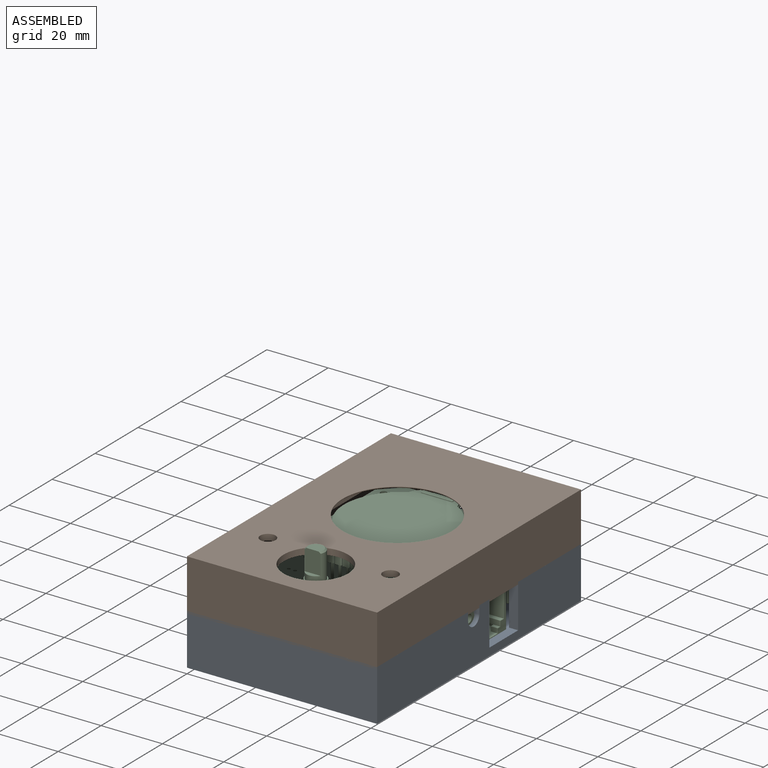
[diagram: assembled view]
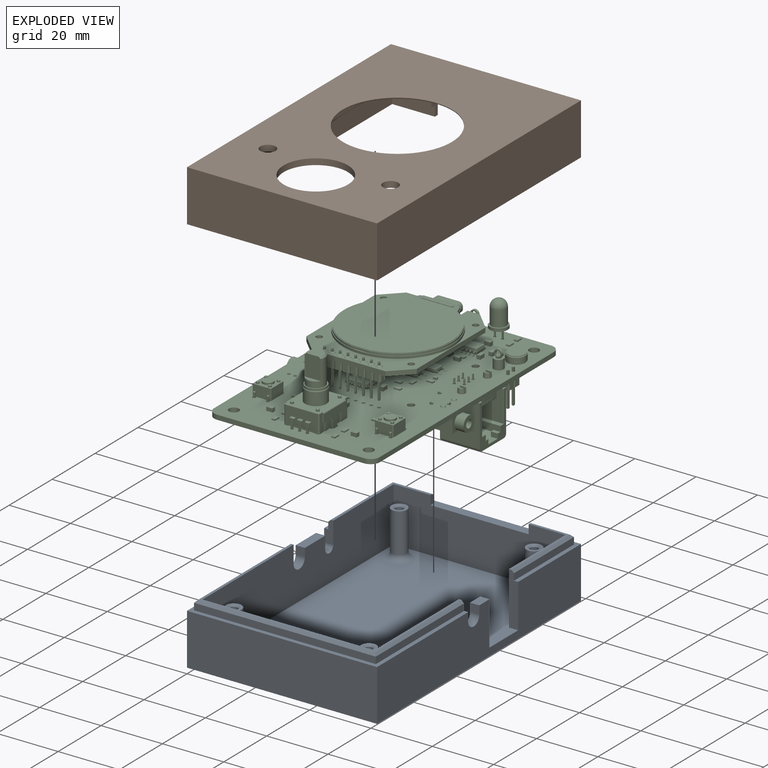
[diagram: exploded view]
GUIDED TOUR — FREECAD ASSEMBLY "Assembly"

This assembly has 3 components, labeled P0..P2 below (a component is one placed body or linked part; the same part can appear more than once), held together by 2 modeled joints plus 2 derived contact edges. A joint is a constraint between two components; its type names the relative motion it leaves free:
  CONTACT — a derived adjacency edge — the two components touch in the source model (clearance under 2% of the assembly's diagonal); it is measured from the geometry, not a modeled constraint,
  CYLINDRICAL — leaves both rotation about and translation along the listed axis free.
Axis/direction vectors are unit vectors and 'through' points are millimeter coordinates, both in the assembly's world frame.

MATES
  1. CYLINDRICAL [Cylindrical] "Joint001": P2 <-> P0, axis (0.000, 0.000, -1.000) through (53.00, 9.00, 14.75) mm
  2. CYLINDRICAL [Cylindrical] "Joint002": P2 <-> P0, axis (0.000, 0.000, -1.000) through (9.00, 86.00, 14.75) mm
  3. CONTACT "contact_0_1": P0 <-> P1, contact direction (0.000, 0.000, 1.000) through (1.35, 63.88, 17.10) mm (derived from contact, not a modeled constraint)
  4. CONTACT "contact_1_2": P1 <-> P2, contact direction (0.926, 0.376, 0.000) through (24.45, 93.62, 17.10) mm (derived from contact, not a modeled constraint)

ASSEMBLY ORDER
  1. P0 — the base component [order verified]
  2. P2 [order verified]
  3. P1 [order verified]
Order-tag legend:
  [order verified] — this step's position reverses a verified removal order: the component was checked to insert without passing through the ones already placed.

Of the 3 components, 1 carries a construction recipe — the FreeCAD feature program (sketches with constraints, then the solid features that consume them) that regenerates the part from scratch, quoted from this document or from the linked companion document it references; the rest are supplied as boundary geometry only. The tour below walks the components in assembly order: each is shown spotlighted twice — in the assembled view, then in the exploded view, where a leader line traces a displaced component back to its assembled socket (components that stay in place when exploded have no leader line; saturated green if recipe-attached, orange if geometry-only; every other component desaturated gray) — followed by its recipe or geometry summary and the mates that hold it.
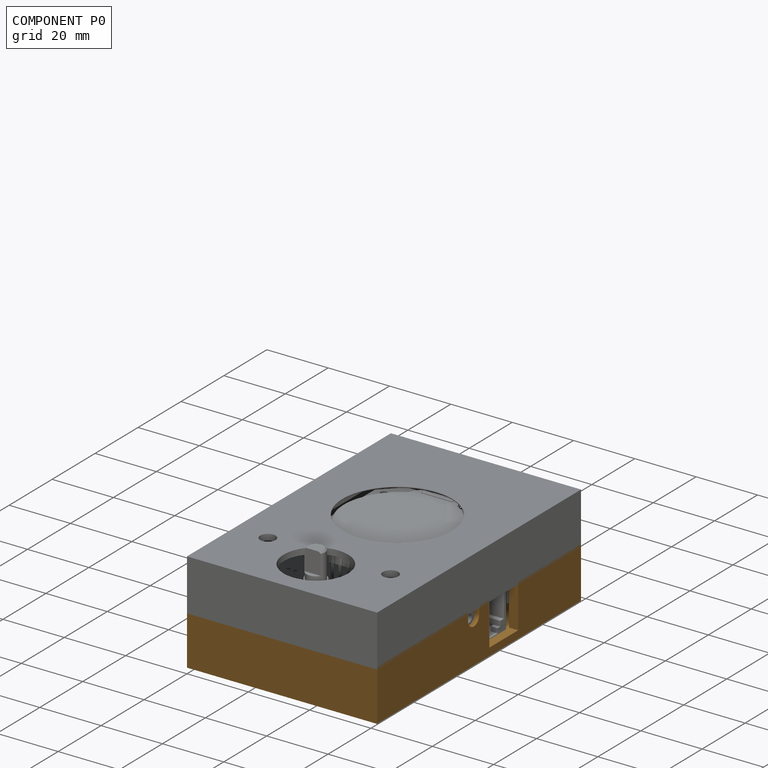
[diagram: component P0 — assembled]
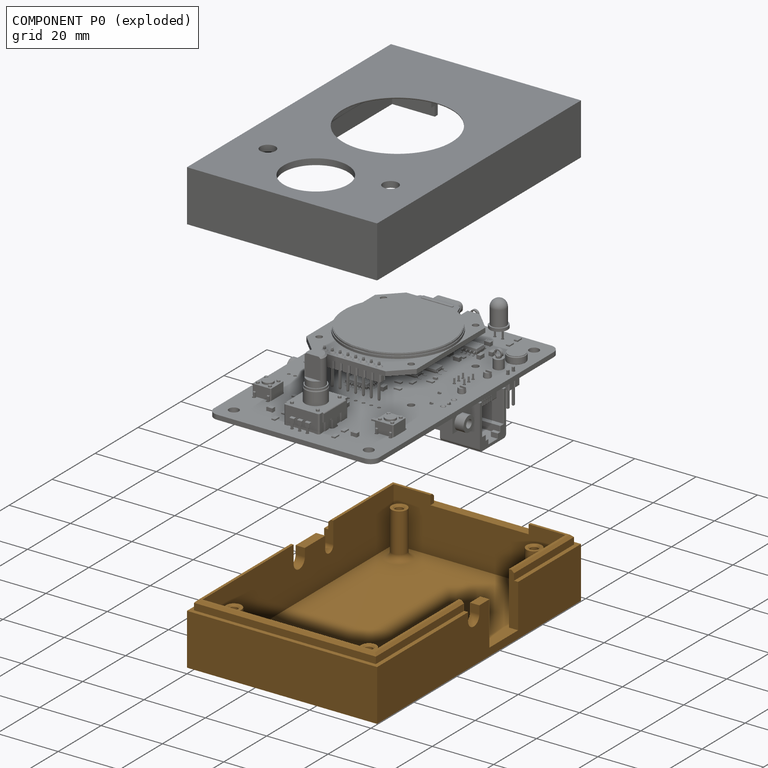
[diagram: component P0 — exploded]
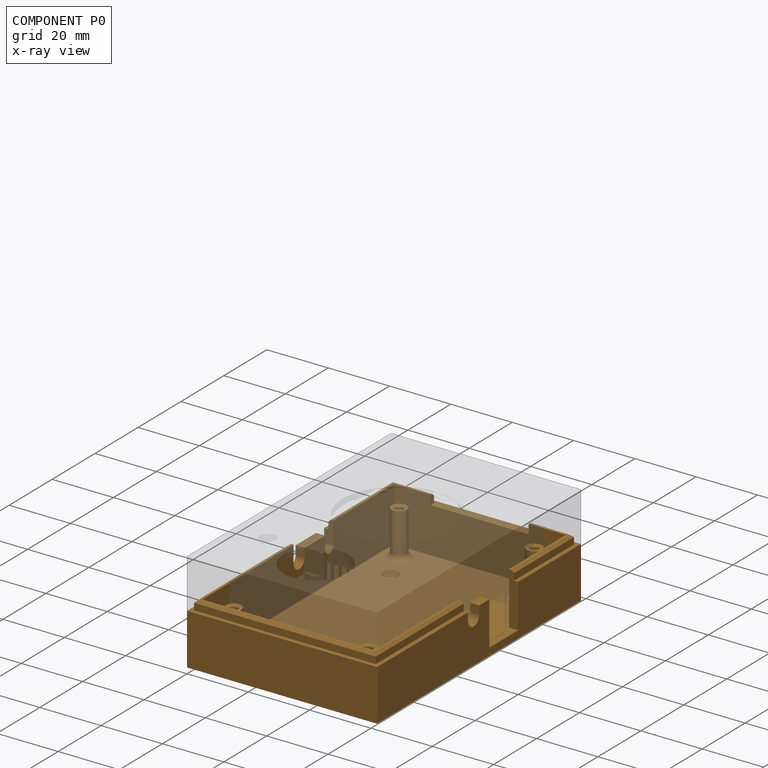
[diagram: component P0 — x-ray view]
COMPONENT P0 — geometry summary ("Body"; no construction recipe available for this part):
  bounding box: 95.0 x 62.0 x 19.8 mm
  tessellated surface: 39,208 triangles
  volume: 26321 mm^3 (23% of its bounding box)
Held by: CYLINDRICAL mate "Joint001" to P2; CYLINDRICAL mate "Joint002" to P2; resting contact with P1 (derived edge).
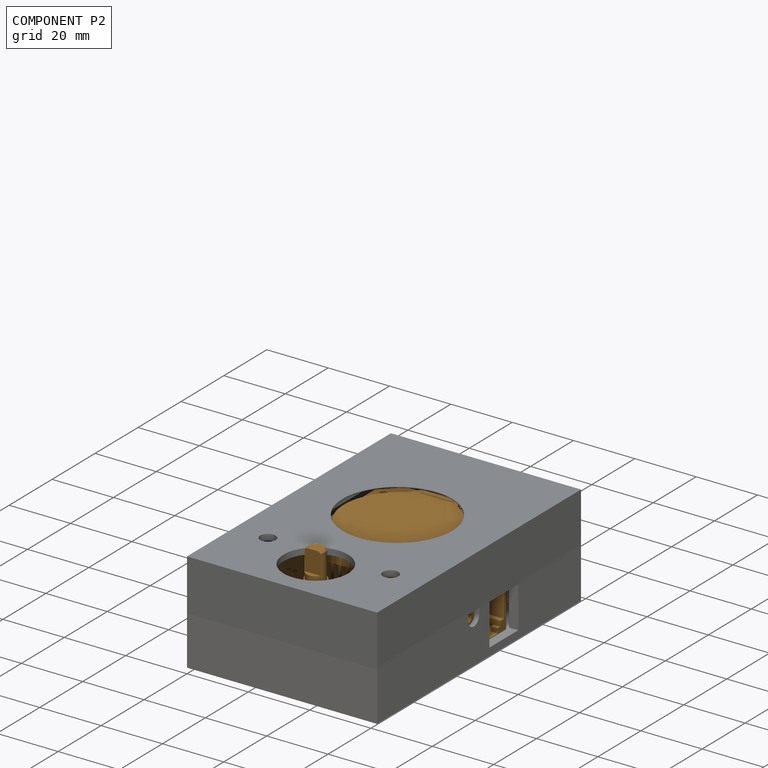
[diagram: component P2 — assembled]
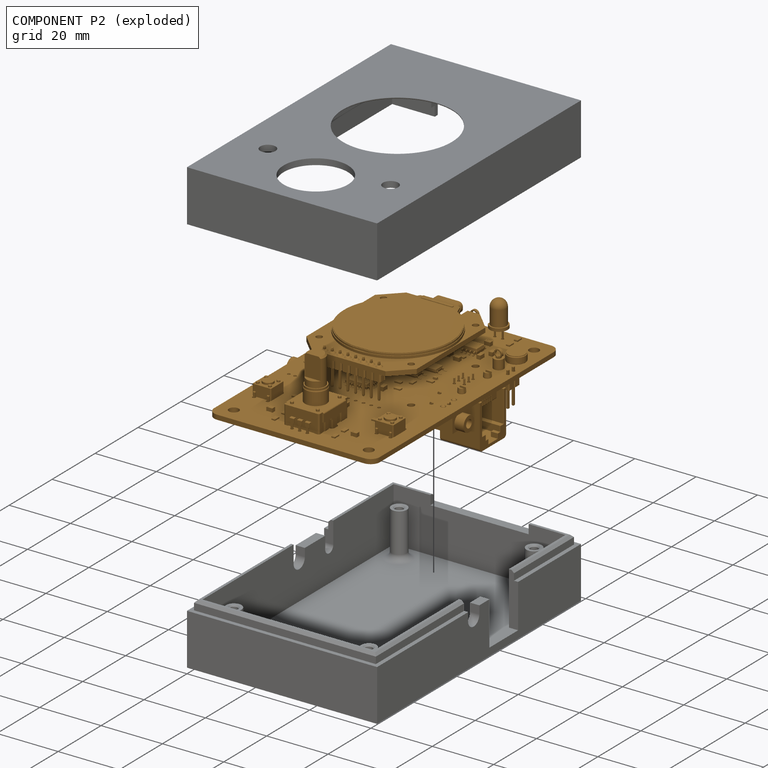
[diagram: component P2 — exploded]
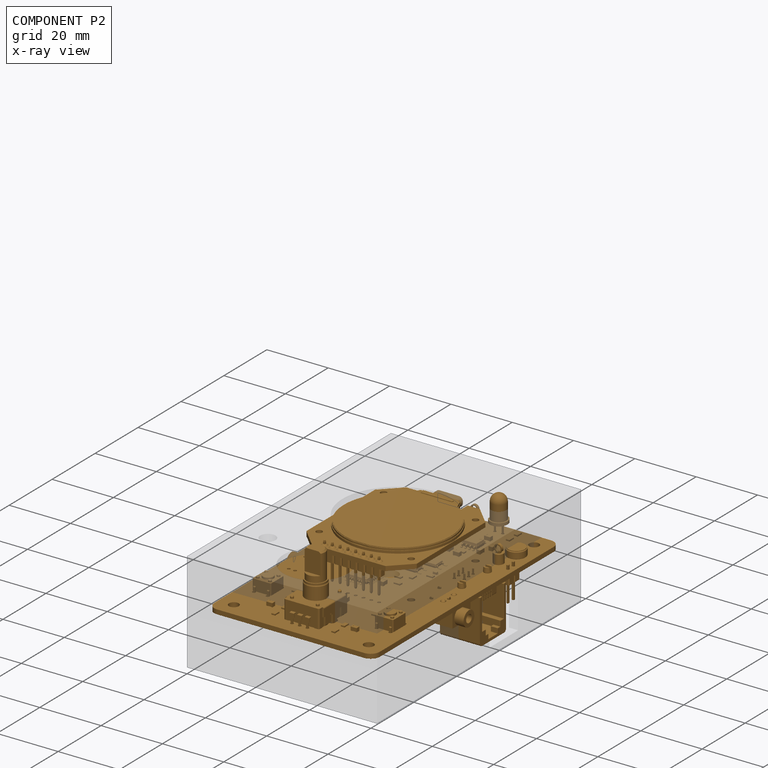
[diagram: component P2 — x-ray view]
COMPONENT P2 — geometry summary ("PCB_Rev2 1"; no construction recipe available for this part):
  bounding box: 89.6 x 59.9 x 36.2 mm
  tessellated surface: 319,459 triangles
  volume: 15538 mm^3 (8% of its bounding box)
Held by: CYLINDRICAL mate "Joint001" to P0; CYLINDRICAL mate "Joint002" to P0; resting contact with P1 (derived edge).
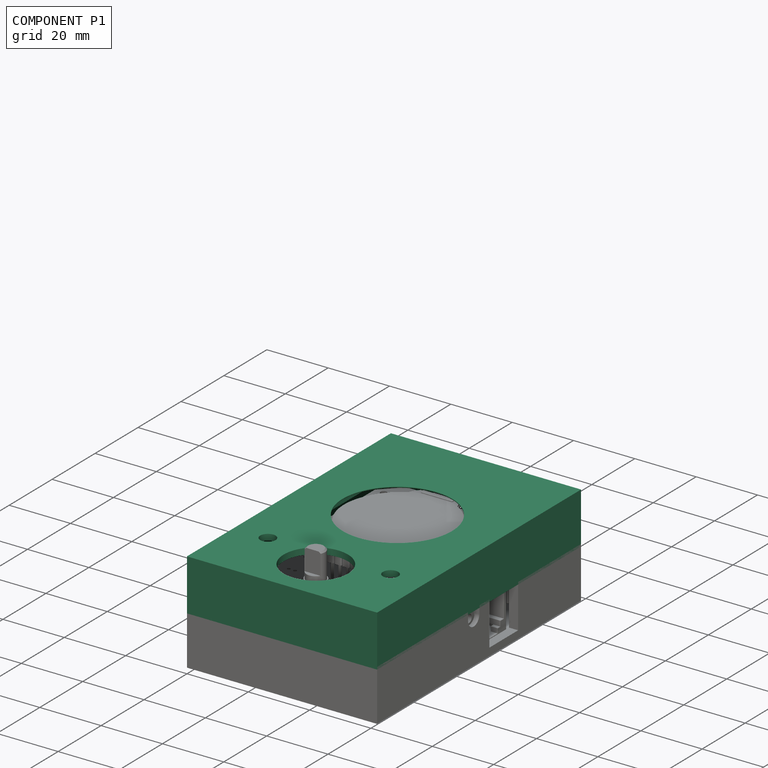
[diagram: component P1 — assembled]
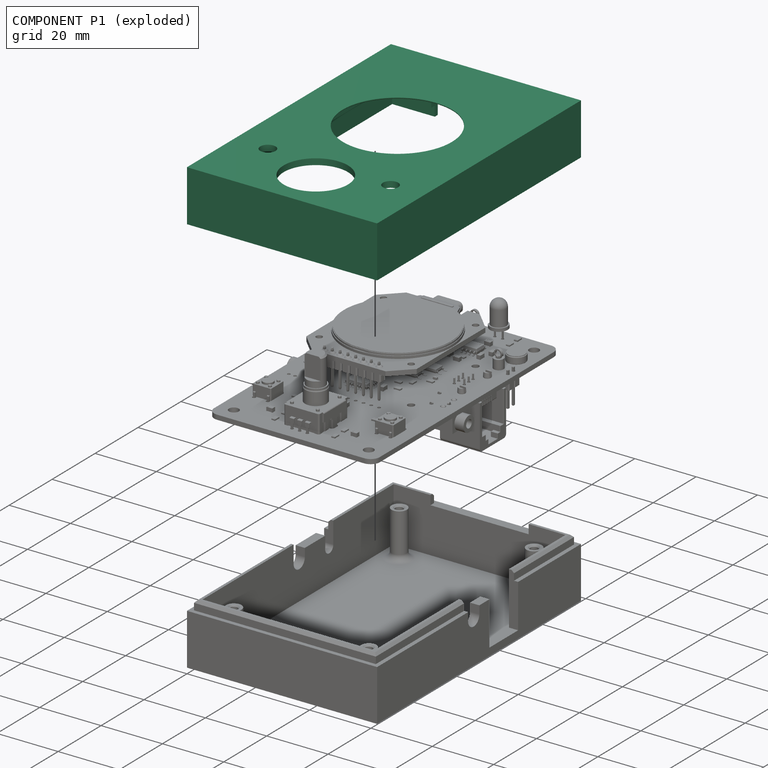
[diagram: component P1 — exploded]
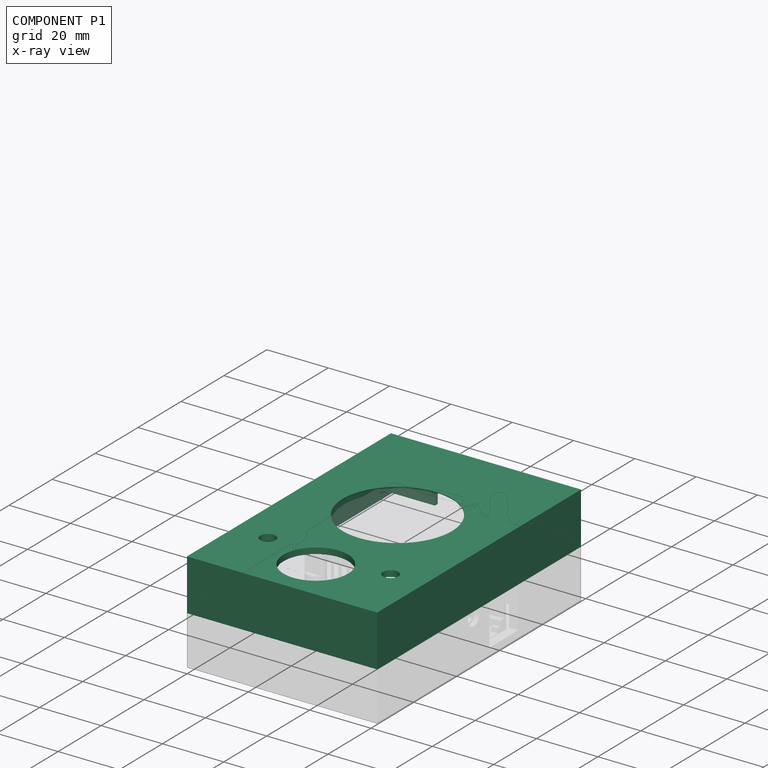
[diagram: component P1 — x-ray view]
COMPONENT P1 — recipe-attached ("C1014", a linked part whose construction recipe lives in a companion FreeCAD document of the same project; that document's serialized recipe follows).
Held by: resting contact with P0 (derived edge); resting contact with P2 (derived edge).
Construction recipe (the companion document, serialized — sketch geometry with constraints, then the solid features built on it; lengths are millimeters unless a unit is written):

FCSTD DOCUMENT  (FreeCAD 1.0R39319 (Git))
Label: Enclosure
License: All rights reserved
objects: Sketcher::SketchObject×13, PartDesign::Pad×7, PartDesign::Pocket×6, PartDesign::Chamfer×3, PartDesign::Fillet×2, PartDesign::Body×2
note: 82 computed .brp shape members not serialized (recipe doc carries the construction recipe); baked Part::Feature solids carry a one-line shape summary decoded from their .brp

FEATURE [Sketcher::SketchObject] Sketch
  ArcFitTolerance = 1e-06
  AttachmentSupport = -> [XY_Plane]
  FullyConstrained = true
  MakeInternals = false
  MapMode = 5
  sketch-geometry (22):
    g0: LineSegment [constr] StartX=4 StartY=4 StartZ=0 EndX=58 EndY=4 EndZ=0
    g1: LineSegment [constr] StartX=58 StartY=4 StartZ=0 EndX=58 EndY=91 EndZ=0
    g2: LineSegment [constr] StartX=58 StartY=91 StartZ=0 EndX=4 EndY=91 EndZ=0
    g3: LineSegment [constr] StartX=4 StartY=91 StartZ=0 EndX=4 EndY=4 EndZ=0
    g4: LineSegment StartX=0 StartY=0 StartZ=0 EndX=62 EndY=0 EndZ=0
    g5: LineSegment StartX=62 StartY=0 StartZ=0 EndX=62 EndY=95 EndZ=0
    g6: LineSegment StartX=62 StartY=95 StartZ=0 EndX=0 EndY=95 EndZ=0
    g7: LineSegment StartX=0 StartY=95 StartZ=0 EndX=0 EndY=0 EndZ=0
    g8: LineSegment StartX=3 StartY=92 StartZ=0 EndX=3 EndY=3 EndZ=0
    g9: LineSegment StartX=3 StartY=3 StartZ=0 EndX=59 EndY=3 EndZ=0
    g10: LineSegment StartX=59 StartY=3 StartZ=0 EndX=59 EndY=92 EndZ=0
    g11: LineSegment StartX=59 StartY=92 StartZ=0 EndX=3 EndY=92 EndZ=0
    g12: GeomPoint X=31 Y=92 Z=0
    g13: GeomPoint X=31 Y=91 Z=0
    g14: GeomPoint X=58 Y=47.5 Z=0
    g15: GeomPoint X=59 Y=47.5 Z=0
    g16: GeomPoint X=31 Y=95 Z=0
    g17: GeomPoint X=62 Y=47.5 Z=0
    g18: LineSegment [constr] StartX=58 StartY=47.5 StartZ=0 EndX=59 EndY=47.5 EndZ=0
    g19: LineSegment [constr] StartX=59 StartY=47.5 StartZ=0 EndX=62 EndY=47.5 EndZ=0
    g20: LineSegment [constr] StartX=31 StartY=91 StartZ=0 EndX=31 EndY=92 EndZ=0
    g21: LineSegment [constr] StartX=31 StartY=92 StartZ=0 EndX=31 EndY=95 EndZ=0
  constraints (49):
    c: Coincident(g0,g1)
    c: Coincident(g1,g2)
    c: Coincident(g2,g3)
    c: Coincident(g3,g0)
    c: Horizontal(g0)
    c: Horizontal(g2)
    c: Vertical(g1)
    c: Vertical(g3)
    c: DistanceX(g2,g2) = 54
    c: DistanceY(g3,g3) = 87
    c: Coincident(g4,g5)
    c: Coincident(g5,g6)
    c: Coincident(g6,g7)
    c: Coincident(g7,g4)
    c: Horizontal(g4)
    c: Horizontal(g6)
    c: Vertical(g5)
    c: Vertical(g7)
    c: Coincident(g4,g-1)
    c: Coincident(g8,g9)
    c: Coincident(g9,g10)
    c: Coincident(g10,g11)
    c: Coincident(g11,g8)
    c: Vertical(g8)
    c: Vertical(g10)
    c: Horizontal(g9)
    c: Horizontal(g11)
    c: Symmetric(g11,g11,g12)
    c: Symmetric(g2,g2,g13)
    c: Symmetric(g1,g1,g14)
    c: Symmetric(g10,g10,g15)
    c: Symmetric(g6,g6,g16)
    c: Symmetric(g5,g5,g17)
    c: Coincident(g18,g14)
    c: Coincident(g18,g15)
    c: Coincident(g19,g15)
    c: Coincident(g19,g17)
    c: Coincident(g20,g13)
    c: Coincident(g20,g12)
    c: Coincident(g21,g12)
    c: Coincident(g21,g16)
    c: Vertical(g21)
    c: Vertical(g20)
    c: Horizontal(g19)
    c: Horizontal(g18)
    c: DistanceY(g20,g20) = 1
    c: DistanceX(g18,g18) = 1
    c: Distance(g19,g19) = 3
    c: Distance(g21,g21) = 3
FEATURE [PartDesign::Pad] Pad
  Direction = (0,0,1)
  Length = 14.75
  Length2 = 10
  Profile = -> Sketch
  ReferenceAxis = -> Sketch [N_Axis]
  Refine = true
  Suppressed = false
  Type = 0
FEATURE [Sketcher::SketchObject] Sketch001
  ArcFitTolerance = 1e-06
  AttachmentSupport = -> [Pad]
  ExternalGeometry = -> [Pad]
  FullyConstrained = true
  MakeInternals = false
  MapMode = 5
  Placement = pos=(0,0,0) rot=(1,0,0;3.14159rad)
  sketch-geometry (4):
    g0: LineSegment StartX=0 StartY=0 StartZ=0 EndX=0 EndY=-95 EndZ=0
    g1: LineSegment StartX=0 StartY=-95 StartZ=0 EndX=62 EndY=-95 EndZ=0
    g2: LineSegment StartX=62 StartY=-95 StartZ=0 EndX=62 EndY=0 EndZ=0
    g3: LineSegment StartX=62 StartY=0 StartZ=0 EndX=0 EndY=0 EndZ=0
  constraints (10):
    c: Coincident(g0,g1)
    c: Coincident(g1,g2)
    c: Coincident(g2,g3)
    c: Coincident(g3,g0)
    c: Vertical(g0)
    c: Vertical(g2)
    c: Horizontal(g1)
    c: Horizontal(g3)
    c: Coincident(g0,g-1)
    c: Coincident(g1,g-3)
FEATURE [PartDesign::Pad] Pad001
  BaseFeature = -> Pad
  Direction = (0,0,-1)
  Length = 2
  Length2 = 10
  Profile = -> Sketch001
  ReferenceAxis = -> Sketch001 [N_Axis]
  Refine = true
  Suppressed = false
  Type = 0
FEATURE [Sketcher::SketchObject] Sketch002
  ArcFitTolerance = 1e-06
  AttachmentSupport = -> [Pad001]
  ExternalGeometry = -> [Pad001]
  FullyConstrained = true
  MakeInternals = false
  MapMode = 5
  sketch-geometry (25):
    g0: Circle CenterX=9 CenterY=86 CenterZ=0 NormalX=0 NormalY=0 NormalZ=1 AngleXU=0 Radius=2.5
    g1: Circle CenterX=9 CenterY=86 CenterZ=0 NormalX=0 NormalY=0 NormalZ=1 AngleXU=0 Radius=1.25
    g2: LineSegment [constr] StartX=58 StartY=4 StartZ=0 EndX=58 EndY=91 EndZ=0
    g3: LineSegment [constr] StartX=58 StartY=91 StartZ=0 EndX=4 EndY=91 EndZ=0
    g4: LineSegment [constr] StartX=4 StartY=91 StartZ=0 EndX=4 EndY=4 EndZ=0
    g5: LineSegment [constr] StartX=4 StartY=4 StartZ=0 EndX=58 EndY=4 EndZ=0
    g6: GeomPoint [constr] X=31 Y=91 Z=0
    g7: GeomPoint [constr] X=31 Y=92 Z=0
    g8: GeomPoint [constr] X=59 Y=47.5 Z=0
    g9: GeomPoint [constr] X=58 Y=47.5 Z=0
    g10: LineSegment [constr] StartX=58 StartY=47.5 StartZ=0 EndX=59 EndY=47.5 EndZ=0
    g11: LineSegment [constr] StartX=31 StartY=91 StartZ=0 EndX=31 EndY=92 EndZ=0
    g12: LineSegment [constr] StartX=4 StartY=91 StartZ=0 EndX=9 EndY=86 EndZ=0
    g13: LineSegment [constr] StartX=58 StartY=91 StartZ=0 EndX=53 EndY=86 EndZ=0
    g14: LineSegment [constr] StartX=58 StartY=4 StartZ=0 EndX=53 EndY=9 EndZ=0
    g15: LineSegment [constr] StartX=4 StartY=4 StartZ=0 EndX=9 EndY=9 EndZ=0
    g16: LineSegment [constr] StartX=53 StartY=86 StartZ=0 EndX=9 EndY=86 EndZ=0
    g17: LineSegment [constr] StartX=53 StartY=86 StartZ=0 EndX=53 EndY=9 EndZ=0
    g18: LineSegment [constr] StartX=53 StartY=9 StartZ=0 EndX=9 EndY=9 EndZ=0
    g19: Circle CenterX=53 CenterY=86 CenterZ=0 NormalX=0 NormalY=0 NormalZ=1 AngleXU=0 Radius=1.25
    g20: Circle CenterX=53 CenterY=86 CenterZ=0 NormalX=0 NormalY=0 NormalZ=1 AngleXU=0 Radius=2.5
    g21: Circle CenterX=53 CenterY=9 CenterZ=0 NormalX=0 NormalY=0 NormalZ=1 AngleXU=0 Radius=1.25
    g22: Circle CenterX=53 CenterY=9 CenterZ=0 NormalX=0 NormalY=0 NormalZ=1 AngleXU=0 Radius=2.5
    g23: Circle CenterX=9 CenterY=9 CenterZ=0 NormalX=0 NormalY=0 NormalZ=1 AngleXU=0 Radius=1.25
    g24: Circle CenterX=9 CenterY=9 CenterZ=0 NormalX=0 NormalY=0 NormalZ=1 AngleXU=0 Radius=2.5
  constraints (54):
    c: Coincident(g1,g0)
    c: Diameter(g1) = 2.5
    c: Diameter(g0) = 5
    c: Coincident(g2,g3)
    c: Coincident(g3,g4)
    c: Coincident(g4,g5)
    c: Coincident(g5,g2)
    c: Vertical(g2)
    c: Vertical(g4)
    c: Horizontal(g3)
    c: Horizontal(g5)
    c: DistanceX(g3,g3) = 54
    c: DistanceY(g2,g2) = 87
    c: Symmetric(g3,g3,g6)
    c: Symmetric(g-5,g-5,g7)
    c: Symmetric(g-4,g-4,g8)
    c: Symmetric(g2,g2,g9)
    c: Coincident(g10,g9)
    c: Coincident(g10,g8)
    c: Coincident(g11,g6)
    c: Coincident(g11,g7)
    c: Vertical(g11)
    c: Horizontal(g10)
    c: Coincident(g12,g3)
    c: Coincident(g12,g0)
    c: Coincident(g13,g2)
    c: Coincident(g14,g2)
    c: Coincident(g15,g4)
    c: Equal(g13,g14)
    c: Equal(g14,g15)
    c: Equal(g15,g12)
    c: DistanceX(g12,g12) = 5
    c: DistanceY(g12,g12) = 5
    c: Coincident(g16,g13)
    c: Coincident(g16,g0)
    c: Horizontal(g16)
    c: Coincident(g17,g13)
    c: Coincident(g17,g14)
    c: Vertical(g17)
    c: Coincident(g18,g14)
    c: Coincident(g18,g15)
    c: Horizontal(g18)
    c: Coincident(g19,g13)
    c: Coincident(g20,g13)
    c: Coincident(g21,g14)
    c: Coincident(g22,g14)
    c: Coincident(g23,g15)
    c: Coincident(g24,g15)
    c: Equal(g19,g23)
    c: Equal(g23,g21)
    c: Equal(g21,g1)
    c: Equal(g0,g20)
    c: Equal(g20,g22)
    c: Equal(g22,g24)
FEATURE [PartDesign::Pad] Pad002
  BaseFeature = -> Pad001
  Direction = (0,0,1)
  Length = 14.75
  Length2 = 10
  Profile = -> Sketch002
  ReferenceAxis = -> Sketch002 [N_Axis]
  Refine = true
  Suppressed = false
  Type = 0
FEATURE [Sketcher::SketchObject] Sketch003
  ArcFitTolerance = 1e-06
  AttachmentSupport = -> [Pad002]
  ExternalGeometry = -> [Pad002]
  FullyConstrained = true
  MakeInternals = false
  MapMode = 5
  Placement = pos=(0,0,0) rot=(0.57735,-0.57735,-0.57735;2.0944rad)
  expr: Constraints[15] = 5.25 mm / 2
  expr: Constraints[32] = 3.75 mm / 2
  sketch-geometry (16):
    g0: LineSegment [constr] StartX=-91 StartY=14.75 StartZ=0 EndX=-4 EndY=14.75 EndZ=0
    g1: LineSegment [constr] StartX=-91 StartY=14.75 StartZ=0 EndX=-95 EndY=14.75 EndZ=0
    g2: LineSegment [constr] StartX=-4 StartY=14.75 StartZ=0 EndX=0 EndY=14.75 EndZ=0
    g3: LineSegment [constr] StartX=-62 StartY=10.7 StartZ=0 EndX=-91 EndY=14.75 EndZ=0
    g4: LineSegment [constr] StartX=-48 StartY=14.75 StartZ=0 EndX=-48 EndY=12.125 EndZ=0
    g5: LineSegment [constr] StartX=-83.5 StartY=14.75 StartZ=0 EndX=-48 EndY=14.75 EndZ=0
    g6: ArcOfCircle CenterX=-48 CenterY=12.125 CenterZ=0 NormalX=0 NormalY=0 NormalZ=1 AngleXU=0 Radius=2.625 StartAngle=3.14159 EndAngle=6.28319
    g7: LineSegment StartX=-50.625 StartY=12.125 StartZ=0 EndX=-50.625 EndY=14.75 EndZ=0
    g8: LineSegment StartX=-45.375 StartY=12.125 StartZ=0 EndX=-45.375 EndY=14.75 EndZ=0
    g9: LineSegment [constr] StartX=-50.625 StartY=12.125 StartZ=0 EndX=-45.375 EndY=12.125 EndZ=0
    g10: LineSegment StartX=-50.625 StartY=14.75 StartZ=0 EndX=-45.375 EndY=14.75 EndZ=0
    g11: ArcOfCircle CenterX=-62 CenterY=10.7 CenterZ=0 NormalX=0 NormalY=0 NormalZ=1 AngleXU=0 Radius=1.875 StartAngle=3.14159 EndAngle=6.28319
    g12: LineSegment StartX=-63.875 StartY=10.7 StartZ=0 EndX=-63.875 EndY=14.75 EndZ=0
    g13: LineSegment StartX=-60.125 StartY=10.7 StartZ=0 EndX=-60.125 EndY=14.75 EndZ=0
    g14: LineSegment StartX=-60.125 StartY=14.75 StartZ=0 EndX=-63.875 EndY=14.75 EndZ=0
    g15: LineSegment [constr] StartX=-63.875 StartY=10.7 StartZ=0 EndX=-60.125 EndY=10.7 EndZ=0
  constraints (46):
    c: Horizontal(g0)
    c: DistanceX(g0,g0) = 87
    c: Coincident(g1,g0)
    c: Coincident(g1,g-5)
    c: Coincident(g2,g0)
    c: Coincident(g2,g-4)
    c: Equal(g2,g1)
    c: Horizontal(g1)
    c: Coincident(g3,g0)
    c: DistanceX(g3,g3) = 29
    c: Vertical(g4)
    c: Coincident(g5,g-3)
    c: Coincident(g5,g4)
    c: Horizontal(g5)
    c: DistanceY(g4,g4) = 2.625
    c: Radius(g6) = 2.625
    c: Coincident(g4,g6)
    c: DistanceX(g0,g4) = 43
    c: Coincident(g7,g6)
    c: Coincident(g8,g6)
    c: Vertical(g8)
    c: PointOnObject(g8,g0)
    c: PointOnObject(g7,g0)
    c: Vertical(g7)
    c: Coincident(g9,g6)
    c: Coincident(g9,g6)
    c: Horizontal(g9)
    c: PointOnObject(g4,g9)
    c: Coincident(g10,g7)
    c: Coincident(g10,g8)
    c: DistanceY(g3,g3) = 4.05
    c: Coincident(g11,g3)
    c: Radius(g11) = 1.875
    c: Coincident(g12,g11)
    c: PointOnObject(g12,g0)
    c: Coincident(g13,g11)
    c: PointOnObject(g13,g0)
    c: Coincident(g14,g13)
    c: Coincident(g14,g12)
    c: Coincident(g15,g11)
    c: Coincident(g15,g11)
    c: Horizontal(g15)
    c: Vertical(g13)
    c: Vertical(g12)
    c: PointOnObject(g3,g15)
    c: DistanceX(g3,g-1) = 62
FEATURE [PartDesign::Pocket] Pocket
  BaseFeature = -> Pad002
  Direction = (1,0,0)
  Length = 5
  Length2 = 5
  Profile = -> Sketch003
  ReferenceAxis = -> Sketch003 [N_Axis]
  Refine = true
  Suppressed = false
  Type = 2
FEATURE [Sketcher::SketchObject] Sketch004
  ArcFitTolerance = 1e-06
  AttachmentSupport = -> [Pocket]
  ExternalGeometry = -> [Pocket]
  FullyConstrained = true
  MakeInternals = false
  MapMode = 5
  Placement = pos=(62,0,4.79e-14) rot=(0.57735,0.57735,0.57735;2.0944rad)
  expr: Constraints[8] = 5.25 mm / 2
  sketch-geometry (13):
    g0: LineSegment [constr] StartX=0 StartY=14.75 StartZ=0 EndX=4 EndY=14.75 EndZ=0
    g1: LineSegment [constr] StartX=4 StartY=14.75 StartZ=0 EndX=91 EndY=14.75 EndZ=0
    g2: LineSegment [constr] StartX=91 StartY=14.75 StartZ=0 EndX=95 EndY=14.75 EndZ=0
    g3: ArcOfCircle CenterX=45 CenterY=12.125 CenterZ=0 NormalX=0 NormalY=0 NormalZ=1 AngleXU=0 Radius=2.625 StartAngle=3.14159 EndAngle=6.28319
    g4: LineSegment StartX=42.375 StartY=12.125 StartZ=0 EndX=42.375 EndY=14.75 EndZ=0
    g5: LineSegment StartX=47.625 StartY=12.125 StartZ=0 EndX=47.625 EndY=14.75 EndZ=0
    g6: LineSegment StartX=42.375 StartY=14.75 StartZ=0 EndX=47.625 EndY=14.75 EndZ=0
    g7: LineSegment [constr] StartX=42.375 StartY=12.125 StartZ=0 EndX=47.625 EndY=12.125 EndZ=0
    g8: LineSegment StartX=52.3 StartY=14.75 StartZ=0 EndX=52.3 EndY=0.5 EndZ=0
    g9: LineSegment StartX=52.3 StartY=0.5 StartZ=0 EndX=65.7 EndY=0.5 EndZ=0
    g10: LineSegment StartX=65.7 StartY=0.5 StartZ=0 EndX=65.7 EndY=14.75 EndZ=0
    g11: LineSegment StartX=65.7 StartY=14.75 StartZ=0 EndX=52.3 EndY=14.75 EndZ=0
    g12: GeomPoint X=59 Y=0.5 Z=0
  constraints (36):
    c: Coincident(g0,g-3)
    c: Coincident(g1,g0)
    c: Horizontal(g1)
    c: Coincident(g2,g1)
    c: Coincident(g2,g-4)
    c: Equal(g0,g2)
    c: Horizontal(g0)
    c: DistanceX(g1,g1) = 87
    c: Radius(g3) = 2.625
    c: Coincident(g4,g3)
    c: Coincident(g5,g3)
    c: PointOnObject(g5,g1)
    c: PointOnObject(g4,g1)
    c: Vertical(g4)
    c: Vertical(g5)
    c: Coincident(g6,g4)
    c: Coincident(g6,g5)
    c: Coincident(g7,g3)
    c: Coincident(g7,g3)
    c: PointOnObject(g3,g7)
    c: Horizontal(g7)
    c: DistanceX(g3,g1) = 46
    c: DistanceY(g3,g1) = 2.625
    c: Coincident(g8,g9)
    c: Coincident(g9,g10)
    c: Coincident(g10,g11)
    c: Coincident(g11,g8)
    c: Vertical(g8)
    c: Vertical(g10)
    c: Horizontal(g9)
    c: Horizontal(g11)
    c: PointOnObject(g8,g1)
    c: Symmetric(g9,g9,g12)
    c: DistanceX(g12,g1) = 32
    c: DistanceX(g9,g9) = 13.4
    c: DistanceY(g10,g10) = 14.25
FEATURE [PartDesign::Pocket] Pocket001
  BaseFeature = -> Pocket
  Direction = (-1,0,0)
  Length = 5
  Length2 = 5
  Profile = -> Sketch004
  ReferenceAxis = -> Sketch004 [N_Axis]
  Refine = true
  Suppressed = false
  Type = 2
FEATURE [Sketcher::SketchObject] Sketch005
  ArcFitTolerance = 1e-06
  AttachmentSupport = -> [XY_Plane001]
  FullyConstrained = true
  MakeInternals = false
  MapMode = 5
  sketch-geometry (14):
    g0: LineSegment StartX=0 StartY=0 StartZ=0 EndX=62 EndY=0 EndZ=0
    g1: LineSegment StartX=62 StartY=0 StartZ=0 EndX=62 EndY=95 EndZ=0
    g2: LineSegment StartX=62 StartY=95 StartZ=0 EndX=0 EndY=95 EndZ=0
    g3: LineSegment StartX=0 StartY=95 StartZ=0 EndX=0 EndY=0 EndZ=0
    g4: LineSegment StartX=59 StartY=92 StartZ=0 EndX=3 EndY=92 EndZ=0
    g5: LineSegment StartX=3 StartY=92 StartZ=0 EndX=3 EndY=3 EndZ=0
    g6: LineSegment StartX=3 StartY=3 StartZ=0 EndX=59 EndY=3 EndZ=0
    g7: LineSegment StartX=59 StartY=3 StartZ=0 EndX=59 EndY=92 EndZ=0
    g8: GeomPoint X=31 Y=92 Z=0
    g9: GeomPoint X=31 Y=95 Z=0
    g10: GeomPoint X=62 Y=47.5 Z=0
    g11: GeomPoint X=59 Y=47.5 Z=0
    g12: LineSegment [constr] StartX=59 StartY=47.5 StartZ=0 EndX=62 EndY=47.5 EndZ=0
    g13: LineSegment [constr] StartX=31 StartY=92 StartZ=0 EndX=31 EndY=95 EndZ=0
  constraints (31):
    c: Coincident(g0,g1)
    c: Coincident(g1,g2)
    c: Coincident(g2,g3)
    c: Coincident(g3,g0)
    c: Horizontal(g0)
    c: Horizontal(g2)
    c: Vertical(g1)
    c: Vertical(g3)
    c: Coincident(g0,g-1)
    c: Coincident(g4,g5)
    c: Coincident(g5,g6)
    c: Coincident(g6,g7)
    c: Coincident(g7,g4)
    c: Horizontal(g4)
    c: Horizontal(g6)
    c: Vertical(g5)
    c: Vertical(g7)
    c: DistanceX(g2,g2) = 62
    c: DistanceY(g1,g1) = 95
    c: Symmetric(g4,g4,g8)
    c: Symmetric(g2,g2,g9)
    c: Symmetric(g1,g1,g10)
    c: Symmetric(g7,g7,g11)
    c: Coincident(g12,g11)
    c: Coincident(g12,g10)
    c: Coincident(g13,g8)
    c: Coincident(g13,g9)
    c: Vertical(g13)
    c: Horizontal(g12)
    c: Distance(g12,g12) = 3
    c: Equal(g12,g13)
FEATURE [PartDesign::Pad] Pad003
  Direction = (0,0,1)
  Length = 14.8
  Length2 = 10
  Profile = -> Sketch005
  ReferenceAxis = -> Sketch005 [N_Axis]
  Refine = true
  Suppressed = false
  Type = 0
  expr: Length = (1.6 + 12 + 3 - 2 + 0.2) * 1 mm
FEATURE [Sketcher::SketchObject] Sketch006
  ArcFitTolerance = 1e-06
  AttachmentSupport = -> [Pocket001]
  ExternalGeometry = -> [Pocket001]
  FullyConstrained = true
  MakeInternals = false
  MapMode = 5
  Placement = pos=(0,0,14.75) rot=(0,0,1;0rad)
  sketch-geometry (27):
    g0: LineSegment StartX=3 StartY=92 StartZ=0 EndX=3 EndY=63.875 EndZ=0
    g1: LineSegment StartX=3 StartY=63.875 StartZ=0 EndX=1.35 EndY=63.875 EndZ=0
    g2: LineSegment StartX=1.35 StartY=63.875 StartZ=0 EndX=1.35 EndY=93.65 EndZ=0
    g3: LineSegment StartX=1.35 StartY=93.65 StartZ=0 EndX=15 EndY=93.65 EndZ=0
    g4: LineSegment StartX=60.65 StartY=93.65 StartZ=0 EndX=60.65 EndY=65.7 EndZ=0
    g5: LineSegment StartX=60.65 StartY=65.7 StartZ=0 EndX=59 EndY=65.7 EndZ=0
    g6: LineSegment StartX=59 StartY=65.7 StartZ=0 EndX=59 EndY=92 EndZ=0
    g7: LineSegment StartX=59 StartY=92 StartZ=0 EndX=47 EndY=92 EndZ=0
    g8: LineSegment StartX=59 StartY=42.375 StartZ=0 EndX=60.65 EndY=42.375 EndZ=0
    g9: LineSegment StartX=60.65 StartY=42.375 StartZ=0 EndX=60.65 EndY=1.35 EndZ=0
    g10: LineSegment StartX=60.65 StartY=1.35 StartZ=0 EndX=1.35 EndY=1.35 EndZ=0
    g11: LineSegment StartX=1.35 StartY=1.35 StartZ=0 EndX=1.35 EndY=45.375 EndZ=0
    g12: LineSegment StartX=1.35 StartY=45.375 StartZ=0 EndX=3 EndY=45.375 EndZ=0
    g13: LineSegment StartX=3 StartY=45.375 StartZ=0 EndX=3 EndY=3 EndZ=0
    g14: LineSegment StartX=3 StartY=3 StartZ=0 EndX=59 EndY=3 EndZ=0
    g15: LineSegment StartX=59 StartY=3 StartZ=0 EndX=59 EndY=42.375 EndZ=0
    g16: GeomPoint X=31 Y=92 Z=0
    g17: GeomPoint X=31 Y=93.65 Z=0
    g18: LineSegment [constr] StartX=31 StartY=92 StartZ=0 EndX=31 EndY=93.65 EndZ=0
    g19: GeomPoint [constr] X=31 Y=3 Z=0
    g20: GeomPoint [constr] X=31 Y=1.35 Z=0
    g21: LineSegment [constr] StartX=31 StartY=3 StartZ=0 EndX=31 EndY=1.35 EndZ=0
    g22: LineSegment StartX=15 StartY=92 StartZ=0 EndX=15 EndY=93.65 EndZ=0
    g23: LineSegment StartX=47 StartY=92 StartZ=0 EndX=47 EndY=93.65 EndZ=0
    g24: LineSegment StartX=15 StartY=92 StartZ=0 EndX=3 EndY=92 EndZ=0
    g25: LineSegment StartX=47 StartY=93.65 StartZ=0 EndX=60.65 EndY=93.65 EndZ=0
    g26: LineSegment [constr] StartX=47 StartY=93.65 StartZ=0 EndX=15 EndY=93.65 EndZ=0
  constraints (68):
    c: Coincident(g-6,g0)
    c: Coincident(g0,g-6)
    c: Coincident(g0,g1)
    c: Coincident(g1,g2)
    c: Vertical(g2)
    c: Coincident(g2,g3)
    c: Horizontal(g3)
    c: Coincident(g25,g4)
    c: Vertical(g4)
    c: Coincident(g4,g5)
    c: Coincident(g5,g-7)
    c: Coincident(g5,g6)
    c: Coincident(g6,g-7)
    c: Coincident(g6,g7)
    c: Coincident(g24,g0)
    c: Coincident(g-8,g8)
    c: Coincident(g8,g9)
    c: Vertical(g9)
    c: Coincident(g9,g10)
    c: Horizontal(g10)
    c: Coincident(g10,g11)
    c: Vertical(g11)
    c: Coincident(g11,g12)
    c: Coincident(g12,g-5)
    c: Coincident(g12,g13)
    c: Coincident(g13,g-5)
    c: Coincident(g13,g14)
    c: Coincident(g14,g-8)
    c: Coincident(g14,g15)
    c: Coincident(g15,g8)
    c: Horizontal(g8)
    c: Equal(g8,g5)
    c: Horizontal(g5)
    c: Distance(g8,g8) = 1.65
    c: Horizontal(g12)
    c: Equal(g12,g8)
    c: Horizontal(g1)
    c: Equal(g1,g5)
    c: Symmetric(g7,g24,g16)
    c: Symmetric(g3,g25,g17)
    c: Coincident(g18,g16)
    c: Coincident(g18,g17)
    c: Equal(g18,g1)
    c: Symmetric(g14,g14,g19)
    c: Symmetric(g10,g10,g20)
    c: Coincident(g21,g19)
    c: Coincident(g21,g20)
    c: Equal(g21,g12)
    c: PointOnObject(g22,g24)
    c: Vertical(g22)
    c: PointOnObject(g23,g25)
    c: Vertical(g23)
    c: PointOnObject(g24,g22)
    c: PointOnObject(g25,g23)
    c: Coincident(g3,g22)
    c: Coincident(g7,g23)
    c: Horizontal(g25)
    c: Coincident(g26,g23)
    c: Coincident(g26,g3)
    c: Horizontal(g26)
    c: Horizontal(g24)
    c: Horizontal(g7)
    c: DistanceX(g24,g24) = 12
    c: Equal(g7,g24)
    c: DistanceY(g0,g0) = 28.125
    c: DistanceY(g13,g13) = 42.375
    c: DistanceY(g6,g6) = 26.3
    c: DistanceY(g15,g15) = 39.375
FEATURE [PartDesign::Pad] Pad004
  BaseFeature = -> Pocket001
  Direction = (0,0,1)
  Length = 3
  Length2 = 10
  Profile = -> Sketch006
  ReferenceAxis = -> Sketch006 [N_Axis]
  Refine = true
  Suppressed = false
  Type = 0
FEATURE [PartDesign::Chamfer] Chamfer
  Angle = 45
  Base = -> Pad004 [Edge78,Edge76,Edge69,Edge67,Edge85,Edge83,Edge81]
  BaseFeature = -> Pad004
  ChamferType = 0
  FlipDirection = false
  Refine = true
  Size = 0.8
  Size2 = 1
  SupportTransform = false
  Suppressed = false
  UseAllEdges = false
FEATURE [PartDesign::Chamfer] Chamfer001
  Angle = 45
  Base = -> Chamfer [Edge141,Edge139,Edge138,Edge140]
  BaseFeature = -> Chamfer
  ChamferType = 0
  FlipDirection = false
  Refine = true
  Size = 0.4
  Size2 = 1
  SupportTransform = false
  Suppressed = false
  UseAllEdges = false
FEATURE [PartDesign::Fillet] Fillet
  Base = -> Chamfer001 [Edge15,Edge14,Edge6,Edge13]
  BaseFeature = -> Chamfer001
  Radius = 2
  Refine = true
  SupportTransform = false
  Suppressed = false
  UseAllEdges = false
FEATURE [PartDesign::Body] Body  label="C1013"
  AllowCompound = false
  Group = -> [Sketch,Pad,Sketch001,Pad001,Sketch002,Pad002,Sketch003,Pocket,Sketch004,Pocket001,Sketch006,Pad004,Chamfer,Chamfer001,Fillet]
  Origin = -> Origin
  Tip = -> Fillet
FEATURE [Sketcher::SketchObject] Sketch007
  ArcFitTolerance = 1e-06
  AttachmentSupport = -> [Pad003]
  ExternalGeometry = -> [Pad003]
  FullyConstrained = true
  MakeInternals = false
  MapMode = 5
  Placement = pos=(0,0,14.8) rot=(0,0,1;0rad)
  sketch-geometry (4):
    g0: LineSegment StartX=62 StartY=95 StartZ=0 EndX=0 EndY=95 EndZ=0
    g1: LineSegment StartX=0 StartY=95 StartZ=0 EndX=0 EndY=0 EndZ=0
    g2: LineSegment StartX=0 StartY=0 StartZ=0 EndX=62 EndY=0 EndZ=0
    g3: LineSegment StartX=62 StartY=0 StartZ=0 EndX=62 EndY=95 EndZ=0
  constraints (10):
    c: Coincident(g0,g1)
    c: Coincident(g1,g2)
    c: Coincident(g2,g3)
    c: Coincident(g3,g0)
    c: Horizontal(g0)
    c: Horizontal(g2)
    c: Vertical(g1)
    c: Vertical(g3)
    c: Coincident(g0,g-4)
    c: Coincident(g1,g-1)
FEATURE [PartDesign::Pad] Pad005
  BaseFeature = -> Pad003
  Direction = (0,0,1)
  Length = 2
  Length2 = 10
  Profile = -> Sketch007
  ReferenceAxis = -> Sketch007 [N_Axis]
  Refine = true
  Suppressed = false
  Type = 0
FEATURE [Sketcher::SketchObject] Sketch008
  ArcFitTolerance = 1e-06
  AttachmentSupport = -> [Pad005]
  ExternalGeometry = -> [Pad005]
  FullyConstrained = true
  MakeInternals = false
  MapMode = 5
  Placement = pos=(0,0,16.8) rot=(0,0,1;0rad)
  sketch-geometry (28):
    g0: LineSegment [constr] StartX=0 StartY=0 StartZ=0 EndX=62 EndY=0 EndZ=0
    g1: LineSegment [constr] StartX=62 StartY=0 StartZ=0 EndX=62 EndY=95 EndZ=0
    g2: LineSegment [constr] StartX=62 StartY=95 StartZ=0 EndX=0 EndY=95 EndZ=0
    g3: LineSegment [constr] StartX=0 StartY=95 StartZ=0 EndX=0 EndY=0 EndZ=0
    g4: LineSegment [constr] StartX=58 StartY=91 StartZ=0 EndX=4 EndY=91 EndZ=0
    g5: LineSegment [constr] StartX=4 StartY=91 StartZ=0 EndX=4 EndY=4 EndZ=0
    g6: LineSegment [constr] StartX=4 StartY=4 StartZ=0 EndX=58 EndY=4 EndZ=0
    g7: LineSegment [constr] StartX=58 StartY=4 StartZ=0 EndX=58 EndY=91 EndZ=0
    g8: GeomPoint [constr] X=31 Y=95 Z=0
    g9: GeomPoint [constr] X=31 Y=91 Z=0
    g10: GeomPoint [constr] X=62 Y=47.5 Z=0
    g11: GeomPoint [constr] X=58 Y=47.5 Z=0
    g12: LineSegment [constr] StartX=58 StartY=47.5 StartZ=0 EndX=62 EndY=47.5 EndZ=0
    g13: LineSegment [constr] StartX=31 StartY=91 StartZ=0 EndX=31 EndY=95 EndZ=0
    g14: Circle CenterX=31 CenterY=15.75 CenterZ=0 NormalX=0 NormalY=0 NormalZ=1 AngleXU=0 Radius=10.5
    g15: LineSegment [constr] StartX=31 StartY=15.75 StartZ=0 EndX=58 EndY=4 EndZ=0
    g16: LineSegment [constr] StartX=31 StartY=15.75 StartZ=0 EndX=4 EndY=4 EndZ=0
    g17: Circle CenterX=11 CenterY=22 CenterZ=0 NormalX=0 NormalY=0 NormalZ=1 AngleXU=0 Radius=2.5
    g18: Circle CenterX=51 CenterY=22 CenterZ=0 NormalX=0 NormalY=0 NormalZ=1 AngleXU=0 Radius=2.5
    g19: LineSegment [constr] StartX=58 StartY=4 StartZ=0 EndX=51 EndY=22 EndZ=0
    g20: LineSegment [constr] StartX=11 StartY=22 StartZ=0 EndX=4 EndY=4 EndZ=0
    g21: LineSegment [constr] StartX=11 StartY=22 StartZ=0 EndX=51 EndY=22 EndZ=0
    g22: Circle CenterX=31 CenterY=53.74 CenterZ=0 NormalX=0 NormalY=0 NormalZ=1 AngleXU=0 Radius=17.8
    g23: LineSegment [constr] StartX=31 StartY=53.74 StartZ=0 EndX=4 EndY=4 EndZ=0
    g24: LineSegment [constr] StartX=31 StartY=53.74 StartZ=0 EndX=58 EndY=4 EndZ=0
    g25: LineSegment [constr] StartX=16 StartY=38.74 StartZ=0 EndX=16 EndY=68.74 EndZ=0
    g26: LineSegment [constr] StartX=16 StartY=38.74 StartZ=0 EndX=4 EndY=4 EndZ=0
    g27: LineSegment [constr] StartX=16 StartY=53.74 StartZ=0 EndX=31 EndY=53.74 EndZ=0
  constraints (64):
    c: Coincident(g0,g1)
    c: Coincident(g1,g2)
    c: Coincident(g2,g3)
    c: Coincident(g3,g0)
    c: Horizontal(g0)
    c: Horizontal(g2)
    c: Vertical(g1)
    c: Vertical(g3)
    c: Coincident(g0,g-1)
    c: Coincident(g1,g-3)
    c: Coincident(g4,g5)
    c: Coincident(g5,g6)
    c: Coincident(g6,g7)
    c: Coincident(g7,g4)
    c: Horizontal(g4)
    c: Horizontal(g6)
    c: Vertical(g5)
    c: Vertical(g7)
    c: Symmetric(g2,g2,g8)
    c: Symmetric(g4,g4,g9)
    c: Symmetric(g1,g1,g10)
    c: Symmetric(g7,g7,g11)
    c: Coincident(g12,g11)
    c: Coincident(g12,g10)
    c: Horizontal(g12)
    c: Coincident(g13,g9)
    c: Coincident(g13,g8)
    c: Vertical(g13)
    c: DistanceX(g4,g4) = 54
    c: DistanceY(g7,g7) = 87
    c: DistanceY(g5,g14) = 11.75
    c: Diameter(g14) = 21
    c: Coincident(g15,g14)
    c: Coincident(g15,g6)
    c: Coincident(g16,g14)
    c: Coincident(g16,g5)
    c: Equal(g16,g15)
    c: DistanceY(g5,g17) = 18
    c: DistanceX(g5,g17) = 7
    c: Diameter(g17) = 5
    c: Coincident(g19,g6)
    c: Coincident(g18,g19)
    c: Coincident(g20,g17)
    c: Coincident(g20,g5)
    c: Equal(g20,g19)
    c: Equal(g18,g17)
    c: Coincident(g21,g17)
    c: Coincident(g21,g18)
    c: Horizontal(g21)
    c: Diameter(g22) = 35.6
    c: Coincident(g23,g22)
    c: Coincident(g23,g5)
    c: Coincident(g24,g22)
    c: Coincident(g24,g6)
    c: Equal(g24,g23)
    c: Vertical(g25)
    c: Coincident(g26,g25)
    c: Coincident(g26,g5)
    c: DistanceY(g26,g26) = 34.74
    c: DistanceY(g25,g25) = 30
    c: Symmetric(g25,g25,g27)
    c: Coincident(g27,g22)
    c: Horizontal(g27)
    c: DistanceX(g26,g26) = 12
FEATURE [PartDesign::Pocket] Pocket002
  BaseFeature = -> Pad005
  Direction = (0,0,-1)
  Length = 5
  Length2 = 5
  Profile = -> Sketch008
  ReferenceAxis = -> Sketch008 [N_Axis]
  Refine = true
  Suppressed = false
  Type = 2
FEATURE [Sketcher::SketchObject] Sketch009
  ArcFitTolerance = 1e-06
  AttachmentSupport = -> [Pocket002]
  ExternalGeometry = -> [Pocket002]
  FullyConstrained = true
  MakeInternals = false
  MapMode = 5
  Placement = pos=(0,95,0) rot=(0,0.707107,0.707107;3.14159rad)
  expr: Constraints[20] = 1.6 mm + 4 mm
  expr: Constraints[23] = 1.6 mm + 4 mm
  sketch-geometry (9):
    g0: LineSegment [constr] StartX=-62 StartY=16.8 StartZ=0 EndX=-58 EndY=16.8 EndZ=0
    g1: LineSegment [constr] StartX=-58 StartY=16.8 StartZ=0 EndX=-4 EndY=16.8 EndZ=0
    g2: LineSegment [constr] StartX=-4 StartY=16.8 StartZ=0 EndX=0 EndY=16.8 EndZ=0
    g3: LineSegment StartX=-24.75 StartY=0 StartZ=0 EndX=-15.25 EndY=0 EndZ=0
    g4: LineSegment StartX=-15.25 StartY=0 StartZ=0 EndX=-15.25 EndY=5.6 EndZ=0
    g5: LineSegment StartX=-15.25 StartY=5.6 StartZ=0 EndX=-24.75 EndY=5.6 EndZ=0
    g6: LineSegment StartX=-24.75 StartY=5.6 StartZ=0 EndX=-24.75 EndY=0 EndZ=0
    g7: GeomPoint X=-20 Y=0 Z=0
    g8: Circle CenterX=-40.75 CenterY=5.6 CenterZ=0 NormalX=0 NormalY=0 NormalZ=1 AngleXU=0 Radius=2
  constraints (24):
    c: Coincident(g0,g-4)
    c: Coincident(g1,g0)
    c: Horizontal(g1)
    c: Coincident(g2,g1)
    c: Coincident(g2,g-3)
    c: Equal(g2,g0)
    c: DistanceX(g1,g1) = 54
    c: Horizontal(g0)
    c: Coincident(g3,g4)
    c: Coincident(g4,g5)
    c: Coincident(g5,g6)
    c: Coincident(g6,g3)
    c: Horizontal(g3)
    c: Horizontal(g5)
    c: Vertical(g4)
    c: Vertical(g6)
    c: PointOnObject(g3,g-1)
    c: DistanceX(g5,g5) = 9.5
    c: Symmetric(g3,g3,g7)
    c: DistanceX(g7,g1) = 16
    c: DistanceY(g6,g6) = 5.6
    c: DistanceX(g8,g1) = 36.75
    c: Diameter(g8) = 4
    c: DistanceY(g-1,g8) = 5.6
FEATURE [PartDesign::Pocket] Pocket003
  BaseFeature = -> Pocket002
  Direction = (0,-1,2e-16)
  Length = 5
  Length2 = 5
  Profile = -> Sketch009
  ReferenceAxis = -> Sketch009 [N_Axis]
  Refine = true
  Suppressed = false
  Type = 2
FEATURE [Sketcher::SketchObject] Sketch010
  ArcFitTolerance = 1e-06
  AttachmentSupport = -> [Pocket003]
  ExternalGeometry = -> [Pocket003]
  FullyConstrained = true
  MakeInternals = false
  MapMode = 5
  Placement = pos=(0,0,14.8) rot=(1,0,0;3.14159rad)
  expr: Constraints[12] = 22.69 mm + 0.5 mm
  sketch-geometry (7):
    g0: LineSegment StartX=12.5 StartY=-30.55 StartZ=0 EndX=12.5 EndY=-75.55 EndZ=0
    g1: LineSegment StartX=12.5 StartY=-75.55 StartZ=0 EndX=49.5 EndY=-75.55 EndZ=0
    g2: LineSegment StartX=49.5 StartY=-75.55 StartZ=0 EndX=49.5 EndY=-30.55 EndZ=0
    g3: LineSegment StartX=49.5 StartY=-30.55 StartZ=0 EndX=12.5 EndY=-30.55 EndZ=0
    g4: GeomPoint X=31 Y=-30.55 Z=0
    g5: GeomPoint X=12.5 Y=-53.05 Z=0
    g6: LineSegment [constr] StartX=31 StartY=-30.55 StartZ=0 EndX=31 EndY=-53.74 EndZ=0
  constraints (16):
    c: Coincident(g0,g1)
    c: Coincident(g1,g2)
    c: Coincident(g2,g3)
    c: Coincident(g3,g0)
    c: Vertical(g0)
    c: Vertical(g2)
    c: Horizontal(g1)
    c: Horizontal(g3)
    c: Symmetric(g3,g3,g4)
    c: Symmetric(g0,g0,g5)
    c: DistanceX(g3,g3) = 37
    c: DistanceY(g0,g0) = 45
    c: DistanceY(g-3,g0) = 23.19
    c: Coincident(g6,g4)
    c: Coincident(g6,g-3)
    c: Vertical(g6)
FEATURE [PartDesign::Pocket] Pocket004
  BaseFeature = -> Pocket003
  Direction = (0,0,1)
  Length = 1.6
  Length2 = 5
  Profile = -> Sketch010
  ReferenceAxis = -> Sketch010 [N_Axis]
  Refine = true
  Suppressed = false
  Type = 0
FEATURE [PartDesign::Chamfer] Chamfer002
  Angle = 45
  Base = -> Pocket004 [Edge55]
  BaseFeature = -> Pocket004
  ChamferType = 0
  FlipDirection = false
  Refine = true
  Size = 0.2
  Size2 = 1
  SupportTransform = false
  Suppressed = false
  UseAllEdges = false
FEATURE [Sketcher::SketchObject] Sketch011
  ArcFitTolerance = 1e-06
  AttachmentSupport = -> [Chamfer002]
  ExternalGeometry = -> [Chamfer002]
  FullyConstrained = true
  MakeInternals = false
  MapMode = 5
  Placement = pos=(0,0,0) rot=(1,0,0;3.14159rad)
  sketch-geometry (18):
    g0: LineSegment StartX=3 StartY=-3 StartZ=0 EndX=3 EndY=-45.375 EndZ=0
    g1: LineSegment StartX=3 StartY=-45.375 StartZ=0 EndX=1.35 EndY=-45.375 EndZ=0
    g2: LineSegment StartX=1.35 StartY=-45.375 StartZ=0 EndX=1.35 EndY=-1.35 EndZ=0
    g3: LineSegment StartX=1.35 StartY=-1.35 StartZ=0 EndX=60.65 EndY=-1.35 EndZ=0
    g4: LineSegment StartX=60.65 StartY=-1.35 StartZ=0 EndX=60.65 EndY=-42.375 EndZ=0
    g5: LineSegment StartX=60.65 StartY=-42.375 StartZ=0 EndX=59 EndY=-42.375 EndZ=0
    g6: LineSegment StartX=59 StartY=-42.375 StartZ=0 EndX=59 EndY=-3 EndZ=0
    g7: LineSegment StartX=59 StartY=-3 StartZ=0 EndX=3 EndY=-3 EndZ=0
    g8: LineSegment StartX=3 StartY=-63.875 StartZ=0 EndX=3 EndY=-92 EndZ=0
    g9: LineSegment StartX=3 StartY=-92 StartZ=0 EndX=59 EndY=-92 EndZ=0
    g10: LineSegment StartX=59 StartY=-92 StartZ=0 EndX=59 EndY=-65.7 EndZ=0
    g11: LineSegment StartX=59 StartY=-65.7 StartZ=0 EndX=60.65 EndY=-65.7 EndZ=0
    g12: LineSegment StartX=60.65 StartY=-65.7 StartZ=0 EndX=60.65 EndY=-93.65 EndZ=0
    g13: LineSegment StartX=60.65 StartY=-93.65 StartZ=0 EndX=1.35 EndY=-93.65 EndZ=0
    g14: LineSegment StartX=1.35 StartY=-93.65 StartZ=0 EndX=1.35 EndY=-63.875 EndZ=0
    g15: LineSegment StartX=1.35 StartY=-63.875 StartZ=0 EndX=3 EndY=-63.875 EndZ=0
    g16: LineSegment [constr] StartX=31 StartY=-92 StartZ=0 EndX=31 EndY=-93.65 EndZ=0
    g17: LineSegment [constr] StartX=31 StartY=-3 StartZ=0 EndX=31 EndY=-1.35 EndZ=0
  constraints (48):
    c: Coincident(g0,g-3)
    c: Vertical(g0)
    c: Coincident(g1,g0)
    c: Coincident(g2,g1)
    c: Vertical(g2)
    c: Coincident(g2,g3)
    c: Horizontal(g3)
    c: Coincident(g3,g4)
    c: Vertical(g4)
    c: Coincident(g4,g5)
    c: Horizontal(g5)
    c: Coincident(g5,g6)
    c: Coincident(g6,g-5)
    c: Vertical(g6)
    c: Coincident(g6,g7)
    c: Coincident(g7,g0)
    c: Coincident(g8,g-6)
    c: Vertical(g8)
    c: Coincident(g8,g9)
    c: Coincident(g9,g-4)
    c: Coincident(g9,g10)
    c: Vertical(g10)
    c: Coincident(g10,g11)
    c: Horizontal(g11)
    c: Coincident(g11,g12)
    c: Vertical(g12)
    c: Coincident(g12,g13)
    c: Horizontal(g13)
    c: Coincident(g13,g14)
    c: Vertical(g14)
    c: Coincident(g14,g15)
    c: Coincident(g15,g8)
    c: Horizontal(g15)
    c: DistanceX(g15,g15) = 1.65
    c: Symmetric(g9,g9,g16)
    c: Symmetric(g13,g13,g16)
    c: Vertical(g16)
    c: Equal(g11,g16)
    c: Horizontal(g1)
    c: Equal(g15,g1)
    c: Symmetric(g7,g7,g17)
    c: Symmetric(g3,g3,g17)
    c: Vertical(g17)
    c: Equal(g5,g17)
    c: DistanceY(g8,g8) = 28.125
    c: DistanceY(g0,g0) = 42.375
    c: DistanceY(g10,g10) = 26.3
    c: DistanceY(g6,g6) = 39.375
FEATURE [PartDesign::Pocket] Pocket005
  BaseFeature = -> Chamfer002
  Direction = (0,0,1)
  Length = 3.25
  Length2 = 5
  Profile = -> Sketch011
  ReferenceAxis = -> Sketch011 [N_Axis]
  Refine = true
  Suppressed = false
  Type = 0
FEATURE [Sketcher::SketchObject] Sketch012
  ArcFitTolerance = 1e-06
  AttachmentSupport = -> [Pocket005]
  ExternalGeometry = -> [Pocket005]
  FullyConstrained = true
  MakeInternals = false
  MapMode = 5
  Placement = pos=(0,0,0) rot=(0.57735,-0.57735,-0.57735;2.0944rad)
  expr: Constraints[9] = 3.75 mm / 2 - 0.1 mm
  sketch-geometry (5):
    g0: ArcOfCircle CenterX=-62 CenterY=-4.05 CenterZ=0 NormalX=0 NormalY=0 NormalZ=1 AngleXU=0 Radius=1.775 StartAngle=4.1e-15 EndAngle=3.14159
    g1: LineSegment StartX=-63.775 StartY=-4.05 StartZ=0 EndX=-63.775 EndY=0 EndZ=0
    g2: LineSegment StartX=-63.775 StartY=0 StartZ=0 EndX=-60.225 EndY=0 EndZ=0
    g3: LineSegment StartX=-60.225 StartY=0 StartZ=0 EndX=-60.225 EndY=-4.05 EndZ=0
    g4: LineSegment [constr] StartX=-63.775 StartY=-4.05 StartZ=0 EndX=-60.225 EndY=-4.05 EndZ=0
  constraints (15):
    c: Coincident(g0,g1)
    c: Coincident(g1,g2)
    c: Coincident(g2,g3)
    c: Coincident(g3,g0)
    c: PointOnObject(g2,g-3)
    c: Vertical(g1)
    c: Vertical(g3)
    c: PointOnObject(g1,g-3)
    c: DistanceX(g0,g-1) = 62
    c: Radius(g0) = 1.775
    c: DistanceY(g0,g-3) = 4.05
    c: Coincident(g4,g0)
    c: Coincident(g4,g0)
    c: Horizontal(g4)
    c: PointOnObject(g0,g4)
FEATURE [PartDesign::Pad] Pad006
  BaseFeature = -> Pocket005
  Direction = (-1,0,0)
  Length = 10
  Length2 = 10
  Profile = -> Sketch012
  ReferenceAxis = -> Sketch012 [N_Axis]
  Refine = true
  Reversed = true
  Suppressed = false
  Type = 3
  UpToFace = -> Pocket005 [Face25]
FEATURE [PartDesign::Fillet] Fillet001
  Base = -> Pad006 [Edge86,Edge98]
  BaseFeature = -> Pad006
  Radius = 0.2
  Refine = true
  SupportTransform = false
  Suppressed = false
  UseAllEdges = false
FEATURE [PartDesign::Body] Body001  label="C1014"
  AllowCompound = false
  Group = -> [Sketch005,Pad003,Sketch007,Pad005,Sketch008,Pocket002,Sketch009,Pocket003,Sketch010,Pocket004,Chamfer002,Sketch011,Pocket005,Sketch012,Pad006,Fillet001]
  Origin = -> Origin001
  Placement = pos=(0,0,14) rot=(0,0,1;0rad)
  Tip = -> Fillet001
PROVENANCE & LICENSES
Assembly and component geometry: a FreeCAD (.FCStd) document from a public repository crawl; components, placements and joints were extracted with FreeCAD and each solid tessellated.
Construction recipes: the document's own serialized feature recipes (and, for linked parts, the recipes of companion documents from the same project).
License: gpl-3.0.
Joints: native FreeCAD joints and A2plus constraints are mapped to standard mate types; edges marked 'derived from contact' connect touching components and are measured from the geometry, not modeled.
Verification: 1 of this assembly's 3 components carries a construction recipe (1 from linked companion documents in the same project); the rest are geometry-only. Every component's tessellation passed the extraction mesh gates (mesh-volume checksum against the B-rep where available, bounding-box inflation <= 2%).
Renders: orthographic iso camera (az 35 / el 25); the floor grid conveys scale (grid pitch printed in each image; no ruler). In the exploded view each component is displaced by its stored offset vector: the offsets alone carry the explosion direction (mate normal/axis signs are not orientation cues and do not encode it), and separation distances are assigned per mate-chain, not proportionally to assembly-order depth.
